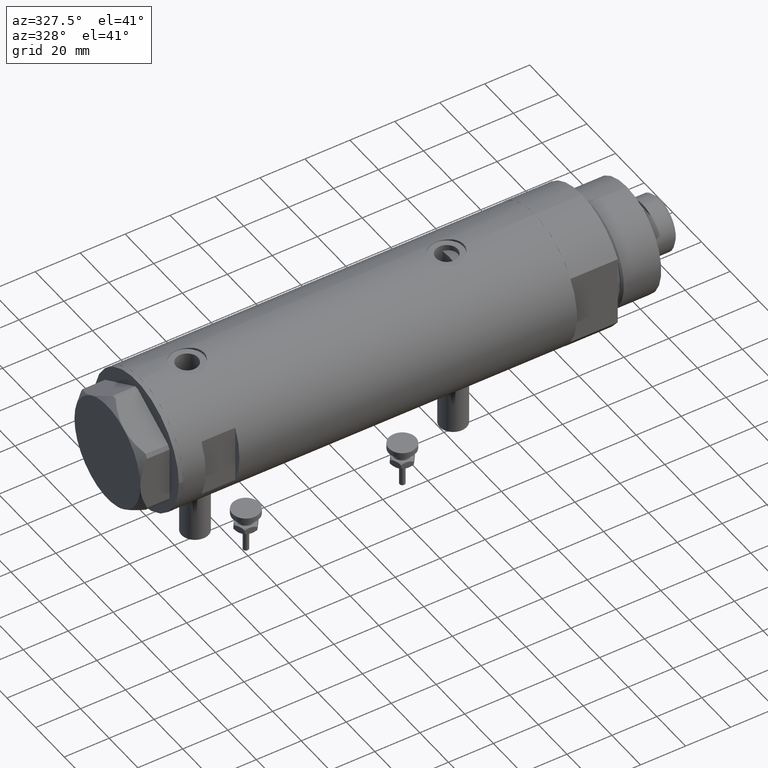
[diagram: clean part render]
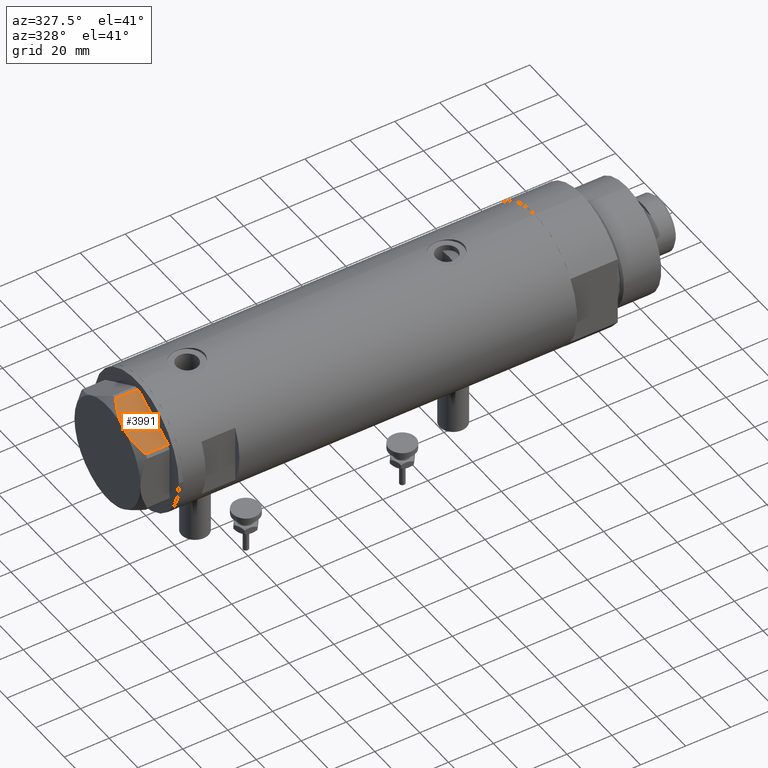
[diagram: same view with one face highlighted and labeled with its STEP entity id]
A machine part, auxiliary view. The second image highlights one B-rep face of the part: STEP entity #3991.
In plain terms, the highlighted planar face has unit normal (-0, 0.5, -0.866).
Its self-contained STEP definition (entity closure, byte-faithful):
#12 = EDGE_CURVE ( 'NONE', #1120, #2444, #88, .T. ) ;
#73 = CARTESIAN_POINT ( 'NONE',  ( -22.03005154776146313, -13.83905619136139364, 9.983800287807548912 ) ) ;
#88 = LINE ( 'NONE', #4158, #4491 ) ;
#141 = AXIS2_PLACEMENT_3D ( 'NONE', #375, #1780, #4915 ) ;
#207 = VECTOR ( 'NONE', #2237, 1000.000000000000000 ) ;
#256 = EDGE_CURVE ( 'NONE', #615, #4465, #1593, .T. ) ;
#278 = CARTESIAN_POINT ( 'NONE',  ( -15.16323225988328893, -17.80361615569431777, 12.63731396715695077 ) ) ;
#352 = CARTESIAN_POINT ( 'NONE',  ( -5.671686373602661035, -23.28356272816404271, 12.04068176582933702 ) ) ;
#375 = CARTESIAN_POINT ( 'NONE',  ( -22.99999999999990408, -13.27905619136147841, 13.00000000000000000 ) ) ;
#391 = LINE ( 'NONE', #955, #207 ) ;
#615 = VERTEX_POINT ( 'NONE', #4323 ) ;
#789 = CARTESIAN_POINT ( 'NONE',  ( -11.49999999999990585, -19.91858428704219364, 13.00000000000000000 ) ) ;
#955 = CARTESIAN_POINT ( 'NONE',  ( -22.99999999999990408, -13.27905619136147841, 0.000000000000000000 ) ) ;
#992 = VERTEX_POINT ( 'NONE', #3843 ) ;
#1120 = VERTEX_POINT ( 'NONE', #1167 ) ;
#1167 = CARTESIAN_POINT ( 'NONE',  ( -22.03005154776146313, -13.83905619136139364, 9.983800287807548912 ) ) ;
#1170 = DIRECTION ( 'NONE',  ( 0.000000000000000000, 0.000000000000000000, 1.000000000000000000 ) ) ;
#1284 = PLANE ( 'NONE',  #141 ) ;
#1288 = CARTESIAN_POINT ( 'NONE',  ( -4.357207709415887642, -24.04247733877630466, 11.57055225522972819 ) ) ;
#1593 = LINE ( 'NONE', #5252, #2029 ) ;
#1780 = DIRECTION ( 'NONE',  ( 0.4999999999999950040, 0.8660254037844415942, -0.000000000000000000 ) ) ;
#1786 = CARTESIAN_POINT ( 'NONE',  ( -3.925137811029895563, -24.29193301091818213, 11.39727285399141365 ) ) ;
#2029 = VECTOR ( 'NONE', #1170, 1000.000000000000000 ) ;
#2134 = CARTESIAN_POINT ( 'NONE',  ( -13.80210138309694479, -18.58946543380922378, 12.85271263895580418 ) ) ;
#2172 = CARTESIAN_POINT ( 'NONE',  ( -5.229981517797923196, -23.53858114556527781, 11.89212886775844602 ) ) ;
#2196 = CARTESIAN_POINT ( 'NONE',  ( -1.799196345396643304, -25.51934588838291162, 10.43131750950939640 ) ) ;
#2210 = CARTESIAN_POINT ( 'NONE',  ( -16.05322244309625290, -17.28978008384019915, 12.42689993760378542 ) ) ;
#2237 = DIRECTION ( 'NONE',  ( 0.8660254037844415942, -0.4999999999999950595, 0.000000000000000000 ) ) ;
#2374 = CARTESIAN_POINT ( 'NONE',  ( -22.03005154776132102, -13.83905619136147536, 0.000000000000000000 ) ) ;
#2444 = VERTEX_POINT ( 'NONE', #2374 ) ;
#2579 = B_SPLINE_CURVE_WITH_KNOTS ( 'NONE', 3,
 ( #789, #2615, #4440, #352, #2172, #1288, #1786, #3984, #2196, #5823 ),
 .UNSPECIFIED., .F., .F.,
 ( 4, 2, 2, 2, 4 ),
 ( 0.01376519981810312224, 0.01998941321701588891, 0.02154546656674407451, 0.02310151991647226705, 0.02621362661592864171 ),
 .UNSPECIFIED. ) ;
#2615 = CARTESIAN_POINT ( 'NONE',  ( -9.678244919010003500, -20.97037507344916563, 13.00000000000009237 ) ) ;
#2655 = EDGE_CURVE ( 'NONE', #1120, #992, #3930, .T. ) ;
#2847 = ORIENTED_EDGE ( 'NONE', *, *, #256, .T. ) ;
#2873 = CARTESIAN_POINT ( 'NONE',  ( -0.9699484522383853280, -25.99811238272275205, 9.983800287807632401 ) ) ;
#3060 = CARTESIAN_POINT ( 'NONE',  ( -18.67981377008999644, -15.77331687414923422, 11.62937486882610827 ) ) ;
#3344 = DIRECTION ( 'NONE',  ( -0.000000000000000000, 0.000000000000000000, -1.000000000000000000 ) ) ;
#3387 = EDGE_CURVE ( 'NONE', #2444, #615, #391, .T. ) ;
#3622 = CARTESIAN_POINT ( 'NONE',  ( -11.49999999999990585, -19.91858428704219364, 13.00000000000000000 ) ) ;
#3648 = ORIENTED_EDGE ( 'NONE', *, *, #3387, .T. ) ;
#3843 = CARTESIAN_POINT ( 'NONE',  ( -11.49999999999990585, -19.91858428704219364, 13.00000000000000000 ) ) ;
#3930 = B_SPLINE_CURVE_WITH_KNOTS ( 'NONE', 3,
 ( #73, #4966, #3060, #2210, #278, #2134, #3943, #5779, #5864, #3622 ),
 .UNSPECIFIED., .F., .F.,
 ( 4, 2, 2, 2, 4 ),
 ( 0.001228959670438515206, 0.007497079744270818830, 0.01063113978118697053, 0.01219816979964504639, 0.01376519981810312224 ),
 .UNSPECIFIED. ) ;
#3943 = CARTESIAN_POINT ( 'NONE',  ( -13.34348161667001698, -18.85424967941148822, 12.90784227772843806 ) ) ;
#3984 = CARTESIAN_POINT ( 'NONE',  ( -2.640413878806567638, -25.03366871902166935, 10.84420102443839262 ) ) ;
#3991 = ADVANCED_FACE ( 'NONE', ( #5787 ), #1284, .F. ) ;
#4158 = CARTESIAN_POINT ( 'NONE',  ( -22.03005154776132102, -13.83905619136147536, 13.00000000000000000 ) ) ;
#4278 = EDGE_LOOP ( 'NONE', ( #5003, #5666, #3648, #2847, #5068 ) ) ;
#4323 = CARTESIAN_POINT ( 'NONE',  ( -0.9699484522383873264, -25.99811238272275205, 0.000000000000000000 ) ) ;
#4440 = CARTESIAN_POINT ( 'NONE',  ( -7.884645426989515649, -22.00591022298554833, 12.70765172847701052 ) ) ;
#4465 = VERTEX_POINT ( 'NONE', #2873 ) ;
#4491 = VECTOR ( 'NONE', #3344, 1000.000000000000000 ) ;
#4915 = DIRECTION ( 'NONE',  ( -0.8660254037844415942, 0.4999999999999950040, 0.000000000000000000 ) ) ;
#4966 = CARTESIAN_POINT ( 'NONE',  ( -20.37350567916426058, -14.79546339452093662, 10.87778242614345992 ) ) ;
#5003 = ORIENTED_EDGE ( 'NONE', *, *, #2655, .F. ) ;
#5017 = EDGE_CURVE ( 'NONE', #992, #4465, #2579, .T. ) ;
#5068 = ORIENTED_EDGE ( 'NONE', *, *, #5017, .F. ) ;
#5252 = CARTESIAN_POINT ( 'NONE',  ( -0.9699484522383907681, -25.99811238272274494, 13.00000000000000000 ) ) ;
#5666 = ORIENTED_EDGE ( 'NONE', *, *, #12, .T. ) ;
#5779 = CARTESIAN_POINT ( 'NONE',  ( -12.41906678023023325, -19.38796083407287085, 12.98168640760950865 ) ) ;
#5787 = FACE_OUTER_BOUND ( 'NONE', #4278, .T. ) ;
#5823 = CARTESIAN_POINT ( 'NONE',  ( -0.9699484522383853280, -25.99811238272275205, 9.983800287807632401 ) ) ;
#5864 = CARTESIAN_POINT ( 'NONE',  ( -11.95865151389046588, -19.65378171203314395, 13.00000000000009948 ) ) ;